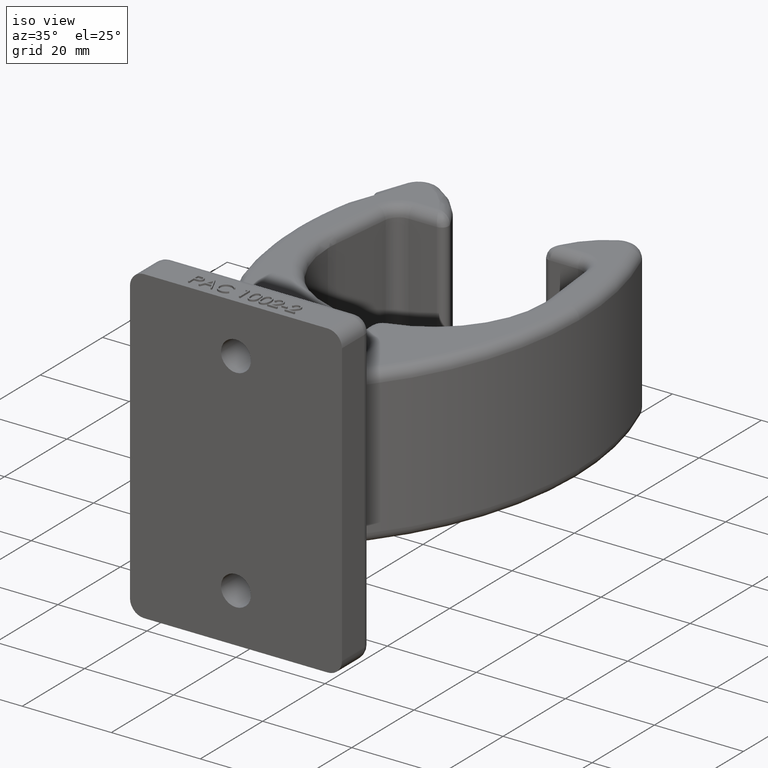
[diagram: clean part render]
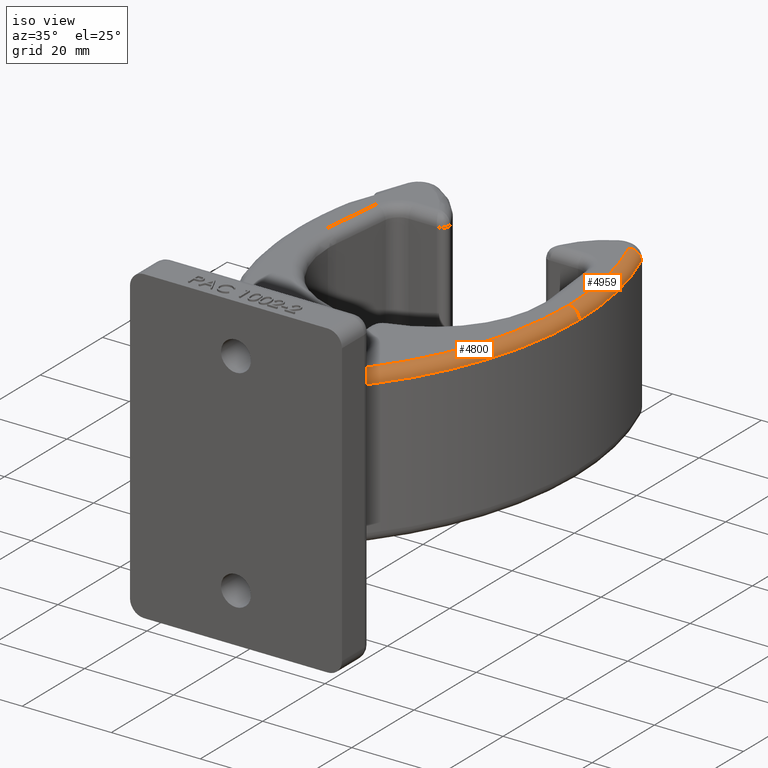
[diagram: same view with one multi-face feature highlighted, each face labeled with its STEP entity id]
A machine part, iso view. The highlighted faces form ONE feature: a constant-radius fillet chain: 2 tangent blend faces with common blend radius 2.3813 mm. The faces share edges in the B-rep.
Their STEP definitions:
[1] entity #4959 (Torus):
#213 = AXIS2_PLACEMENT_3D ( 'NONE', #13378, #5864, #14660 ) ;
#571 = TOROIDAL_SURFACE ( 'NONE', #10762, 2.781250000000000400, 0.09375000000000001400 ) ;
#1657 = VERTEX_POINT ( 'NONE', #14860 ) ;
#2201 = DIRECTION ( 'NONE',  ( 0.0000000000000000000, -1.000000000000000000, 0.0000000000000000000 ) ) ;
#2640 = EDGE_CURVE ( 'NONE', #12735, #11656, #5047, .T. ) ;
#2889 = DIRECTION ( 'NONE',  ( 0.0000000000000000000, 0.0000000000000000000, 1.000000000000000000 ) ) ;
#4237 = CARTESIAN_POINT ( 'NONE',  ( 0.9618351937493882000, 3.587837114009300200, 0.5937500000000000000 ) ) ;
#4307 = AXIS2_PLACEMENT_3D ( 'NONE', #10388, #2889, #11664 ) ;
#4589 = CIRCLE ( 'NONE', #4307, 2.781250000000000400 ) ;
#4854 = CARTESIAN_POINT ( 'NONE',  ( -1.614275554149117600, 2.539502731733396700, 0.5937500000000000000 ) ) ;
#4959 = ADVANCED_FACE ( 'NONE', ( #7284 ), #571, .T. ) ;
#5047 = CIRCLE ( 'NONE', #213, 2.875000000000000400 ) ;
#5528 = DIRECTION ( 'NONE',  ( -0.9262420666601365300, -0.3769292160992024400, 0.0000000000000000000 ) ) ;
#5864 = DIRECTION ( 'NONE',  ( -0.0000000000000000000, -0.0000000000000000000, -1.000000000000000000 ) ) ;
#6085 = DIRECTION ( 'NONE',  ( 0.0000000000000000000, 0.0000000000000000000, 1.000000000000000000 ) ) ;
#6122 = CARTESIAN_POINT ( 'NONE',  ( 1.166974445850882600, 2.539502731733396700, 0.6875000000000000000 ) ) ;
#7251 = CARTESIAN_POINT ( 'NONE',  ( 1.048670387498776200, 3.623174228018600600, 0.5937500000000000000 ) ) ;
#7284 = FACE_OUTER_BOUND ( 'NONE', #12511, .T. ) ;
#7328 = EDGE_CURVE ( 'NONE', #11656, #8286, #13146, .T. ) ;
#7733 = ORIENTED_EDGE ( 'NONE', *, *, #13867, .F. ) ;
#8155 = CIRCLE ( 'NONE', #11106, 0.09375000000000008300 ) ;
#8277 = ORIENTED_EDGE ( 'NONE', *, *, #15047, .F. ) ;
#8286 = VERTEX_POINT ( 'NONE', #6122 ) ;
#8482 = AXIS2_PLACEMENT_3D ( 'NONE', #9710, #2201, #10958 ) ;
#9710 = CARTESIAN_POINT ( 'NONE',  ( 1.166974445850882600, 2.539502731733396700, 0.5937500000000000000 ) ) ;
#10388 = CARTESIAN_POINT ( 'NONE',  ( -1.614275554149117600, 2.539502731733396700, 0.6875000000000000000 ) ) ;
#10762 = AXIS2_PLACEMENT_3D ( 'NONE', #4854, #6085, #13650 ) ;
#10764 = CARTESIAN_POINT ( 'NONE',  ( 1.260724445850882800, 2.539502731733396700, 0.5937500000000000000 ) ) ;
#10958 = DIRECTION ( 'NONE',  ( 0.0000000000000000000, 0.0000000000000000000, -1.000000000000000000 ) ) ;
#11106 = AXIS2_PLACEMENT_3D ( 'NONE', #4237, #13035, #5528 ) ;
#11656 = VERTEX_POINT ( 'NONE', #10764 ) ;
#11664 = DIRECTION ( 'NONE',  ( 1.000000000000000000, 0.0000000000000000000, 0.0000000000000000000 ) ) ;
#12511 = EDGE_LOOP ( 'NONE', ( #15915, #13435, #7733, #8277 ) ) ;
#12735 = VERTEX_POINT ( 'NONE', #7251 ) ;
#13035 = DIRECTION ( 'NONE',  ( -0.3769292160992024400, 0.9262420666601365300, 0.0000000000000000000 ) ) ;
#13146 = CIRCLE ( 'NONE', #8482, 0.09374999999999998600 ) ;
#13378 = CARTESIAN_POINT ( 'NONE',  ( -1.614275554149117600, 2.539502731733396700, 0.5937500000000000000 ) ) ;
#13435 = ORIENTED_EDGE ( 'NONE', *, *, #2640, .F. ) ;
#13650 = DIRECTION ( 'NONE',  ( 1.000000000000000000, 0.0000000000000000000, 0.0000000000000000000 ) ) ;
#13867 = EDGE_CURVE ( 'NONE', #1657, #12735, #8155, .T. ) ;
#14660 = DIRECTION ( 'NONE',  ( 1.000000000000000000, -3.610790391625808000E-015, 0.0000000000000000000 ) ) ;
#14860 = CARTESIAN_POINT ( 'NONE',  ( 0.9618351937493884200, 3.587837114009300200, 0.6875000000000000000 ) ) ;
#15047 = EDGE_CURVE ( 'NONE', #8286, #1657, #4589, .T. ) ;
#15915 = ORIENTED_EDGE ( 'NONE', *, *, #7328, .F. ) ;
[2] entity #4800 (Torus):
#539 = ORIENTED_EDGE ( 'NONE', *, *, #5597, .F. ) ;
#603 = ORIENTED_EDGE ( 'NONE', *, *, #7328, .T. ) ;
#963 = EDGE_LOOP ( 'NONE', ( #539, #603, #11586, #5919, #2792 ) ) ;
#1093 = AXIS2_PLACEMENT_3D ( 'NONE', #13085, #5591, #14375 ) ;
#1734 = CARTESIAN_POINT ( 'NONE',  ( 0.3782378103534825800, 0.5990795678903838600, 0.5937500000000000000 ) ) ;
#1905 = CARTESIAN_POINT ( 'NONE',  ( 0.4451519275033559700, 0.5339147839451919800, 0.6018193469022890000 ) ) ;
#2169 = FACE_OUTER_BOUND ( 'NONE', #963, .T. ) ;
#2201 = DIRECTION ( 'NONE',  ( 0.0000000000000000000, -1.000000000000000000, 0.0000000000000000000 ) ) ;
#2533 = CIRCLE ( 'NONE', #8048, 2.875000000000000400 ) ;
#2599 = AXIS2_PLACEMENT_3D ( 'NONE', #1734, #10506, #3017 ) ;
#2792 = ORIENTED_EDGE ( 'NONE', *, *, #13639, .T. ) ;
#3017 = DIRECTION ( 'NONE',  ( -0.7164092995964410600, 0.6976802386851276300, 0.0000000000000000000 ) ) ;
#4495 = DIRECTION ( 'NONE',  ( 0.0000000000000000000, 0.0000000000000000000, 1.000000000000000000 ) ) ;
#4800 = ADVANCED_FACE ( 'NONE', ( #2169 ), #8453, .T. ) ;
#5591 = DIRECTION ( 'NONE',  ( 0.0000000000000000000, 0.0000000000000000000, 1.000000000000000000 ) ) ;
#5597 = EDGE_CURVE ( 'NONE', #11656, #7900, #2533, .T. ) ;
#5598 = VERTEX_POINT ( 'NONE', #1905 ) ;
#5705 = CARTESIAN_POINT ( 'NONE',  ( -1.614275554149117600, 2.539502731733396700, 0.5937500000000000000 ) ) ;
#5919 = ORIENTED_EDGE ( 'NONE', *, *, #10886, .T. ) ;
#6122 = CARTESIAN_POINT ( 'NONE',  ( 1.166974445850882600, 2.539502731733396700, 0.6875000000000000000 ) ) ;
#6375 = CARTESIAN_POINT ( 'NONE',  ( 0.4456202960978984900, 0.5340654362698480400, 0.5991520622907807700 ) ) ;
#6552 = CARTESIAN_POINT ( 'NONE',  ( 0.3782378103534825800, 0.5990795678903838600, 0.6875000000000000000 ) ) ;
#6978 = DIRECTION ( 'NONE',  ( 1.000000000000000000, 0.0000000000000000000, 0.0000000000000000000 ) ) ;
#7116 = VERTEX_POINT ( 'NONE', #6552 ) ;
#7328 = EDGE_CURVE ( 'NONE', #11656, #8286, #13146, .T. ) ;
#7639 = CARTESIAN_POINT ( 'NONE',  ( 0.4458589326717841100, 0.5341421915284230200, 0.5937500000000000000 ) ) ;
#7900 = VERTEX_POINT ( 'NONE', #12821 ) ;
#8048 = AXIS2_PLACEMENT_3D ( 'NONE', #5705, #14494, #6978 ) ;
#8101 = EDGE_CURVE ( 'NONE', #7116, #8286, #13916, .T. ) ;
#8267 = AXIS2_PLACEMENT_3D ( 'NONE', #13277, #4495, #9541 ) ;
#8286 = VERTEX_POINT ( 'NONE', #6122 ) ;
#8453 = TOROIDAL_SURFACE ( 'NONE', #8267, 2.781250000000000400, 0.09375000000000001400 ) ;
#8482 = AXIS2_PLACEMENT_3D ( 'NONE', #9710, #2201, #10958 ) ;
#9541 = DIRECTION ( 'NONE',  ( 1.000000000000000000, 0.0000000000000000000, 0.0000000000000000000 ) ) ;
#9710 = CARTESIAN_POINT ( 'NONE',  ( 1.166974445850882600, 2.539502731733396700, 0.5937500000000000000 ) ) ;
#9959 = CIRCLE ( 'NONE', #2599, 0.09375000000000000000 ) ;
#10506 = DIRECTION ( 'NONE',  ( 0.6976802386851277400, 0.7164092995964411700, -0.0000000000000000000 ) ) ;
#10764 = CARTESIAN_POINT ( 'NONE',  ( 1.260724445850882800, 2.539502731733396700, 0.5937500000000000000 ) ) ;
#10886 = EDGE_CURVE ( 'NONE', #7116, #5598, #9959, .T. ) ;
#10958 = DIRECTION ( 'NONE',  ( 0.0000000000000000000, 0.0000000000000000000, -1.000000000000000000 ) ) ;
#11586 = ORIENTED_EDGE ( 'NONE', *, *, #8101, .F. ) ;
#11656 = VERTEX_POINT ( 'NONE', #10764 ) ;
#12821 = CARTESIAN_POINT ( 'NONE',  ( 0.4458589326717841100, 0.5341421915284230200, 0.5937500000000000000 ) ) ;
#13085 = CARTESIAN_POINT ( 'NONE',  ( -1.614275554149117600, 2.539502731733396700, 0.6875000000000000000 ) ) ;
#13146 = CIRCLE ( 'NONE', #8482, 0.09374999999999998600 ) ;
#13277 = CARTESIAN_POINT ( 'NONE',  ( -1.614275554149117600, 2.539502731733396700, 0.5937500000000000000 ) ) ;
#13639 = EDGE_CURVE ( 'NONE', #5598, #7900, #14659, .T. ) ;
#13882 = CARTESIAN_POINT ( 'NONE',  ( 0.4451519275033559700, 0.5339147839451919800, 0.6018193469022890000 ) ) ;
#13916 = CIRCLE ( 'NONE', #1093, 2.781250000000000400 ) ;
#14375 = DIRECTION ( 'NONE',  ( 1.000000000000000000, 0.0000000000000000000, 0.0000000000000000000 ) ) ;
#14494 = DIRECTION ( 'NONE',  ( -0.0000000000000000000, -0.0000000000000000000, -1.000000000000000000 ) ) ;
#14659 = B_SPLINE_CURVE_WITH_KNOTS ( 'NONE', 3,
 ( #13882, #6375, #15161, #7639 ),
 .UNSPECIFIED., .F., .F.,
 ( 4, 4 ),
 ( 1.734723475976807100E-018, 0.0002058276739516166600 ),
 .UNSPECIFIED. ) ;
#15161 = CARTESIAN_POINT ( 'NONE',  ( 0.4458589326717841700, 0.5341421915284233500, 0.5964625669004657300 ) ) ;